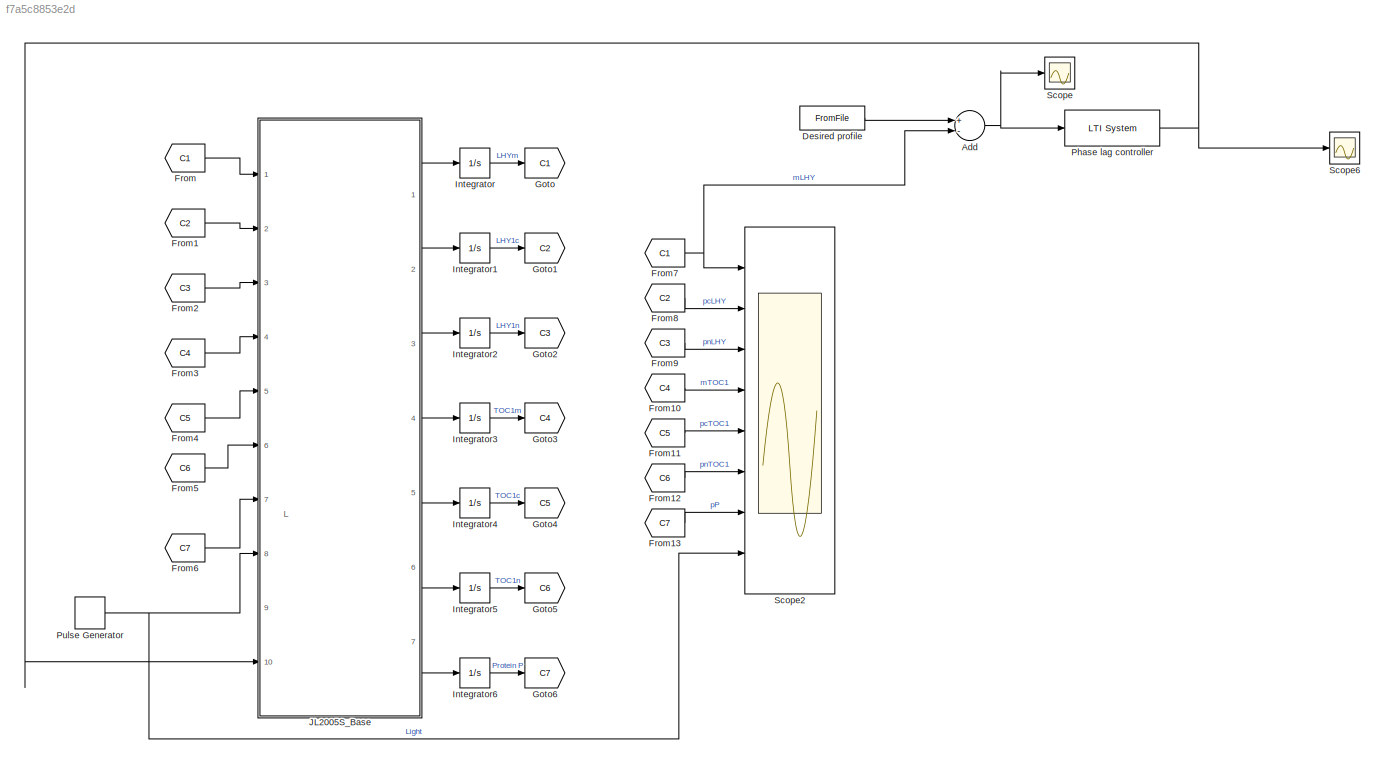
MODEL slx_f7a5c8853e2d
KIND model
CONFIG AbsTol = auto
CONFIG EnableMultiTasking = off
CONFIG FixedStep = 1
CONFIG MaxStep = auto
CONFIG MinStep = auto
CONFIG RelTol = 1e-3
CONFIG SampleTimeConstraint = Unconstrained
CONFIG Solver = ode8
CONFIG SolverName = ode8
CONFIG StartTime = 0.0
CONFIG StopTime = 96
BLOCK [Sum] Add
  InputSameDT = off
  Inputs = +-
  OutDataTypeStr = Inherit: Inherit via internal rule
  Ports = [2, 1]
  SaturateOnIntegerOverflow = off
BLOCK [FromFile] Desired profile
  FileName = JL2005Ssetpoint.mat
  SampleTime = 0
BLOCK [From] From
  GotoTag = C1
BLOCK [From] From1
  GotoTag = C2
BLOCK [From] From10
  GotoTag = C4
BLOCK [From] From11
  GotoTag = C5
BLOCK [From] From12
  GotoTag = C6
BLOCK [From] From13
  GotoTag = C7
BLOCK [From] From2
  GotoTag = C3
BLOCK [From] From3
  GotoTag = C4
BLOCK [From] From4
  GotoTag = C5
BLOCK [From] From5
  GotoTag = C6
BLOCK [From] From6
  GotoTag = C7
BLOCK [From] From7
  GotoTag = C1
BLOCK [From] From8
  GotoTag = C2
BLOCK [From] From9
  GotoTag = C3
BLOCK [Goto] Goto
  GotoTag = C1
BLOCK [Goto] Goto1
  GotoTag = C2
BLOCK [Goto] Goto2
  GotoTag = C3
BLOCK [Goto] Goto3
  GotoTag = C4
BLOCK [Goto] Goto4
  GotoTag = C5
BLOCK [Goto] Goto5
  GotoTag = C6
BLOCK [Goto] Goto6
  GotoTag = C7
BLOCK [Integrator] Integrator
  InitialCondition = 2.4051
  Ports = [1, 1]
BLOCK [Integrator] Integrator1
  InitialCondition = 1.3471
  Ports = [1, 1]
BLOCK [Integrator] Integrator2
  InitialCondition = 0.7448
  Ports = [1, 1]
BLOCK [Integrator] Integrator3
  InitialCondition = 0.0591
  Ports = [1, 1]
BLOCK [Integrator] Integrator4
  InitialCondition = 0.7377
  Ports = [1, 1]
BLOCK [Integrator] Integrator5
  InitialCondition = 1.3882
  Ports = [1, 1]
BLOCK [Integrator] Integrator6
  InitialCondition = 0.1462
  Ports = [1, 1]
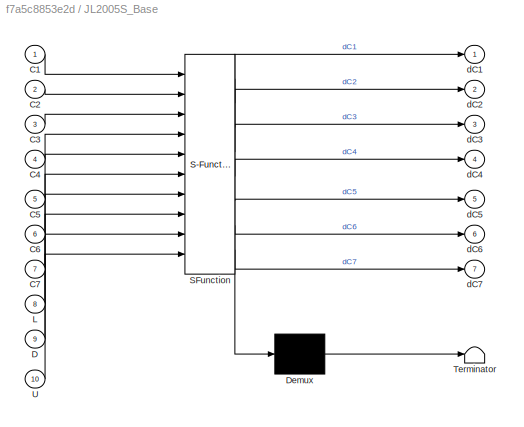
BLOCK [SubSystem] JL2005S_Base
  ErrorFcn = Stateflow.Translate.translate
  PermitHierarchicalResolution = ExplicitOnly
  Ports = [10, 7]
  RequestExecContextInheritance = off
  SFBlockType = MATLAB Function
  TreatAsAtomicUnit = on
  Variant = off
BLOCK [Demux] JL2005S_Base/ Demux 
  Outputs = 1
  Ports = [1, 1]
BLOCK [S-Function] JL2005S_Base/ SFunction 
  EnableBusSupport = on
  FunctionName = sf_sfun
  PortCounts = [10 8]
  Ports = [10, 8]
  SFcnIsStateOwnerBlock = off
  SFunctionDeploymentMode = off
  Tag = Stateflow S-Function S1File_JL2005S 2
BLOCK [Terminator] JL2005S_Base/ Terminator 
BLOCK [Inport] JL2005S_Base/C1
  IconDisplay = Port number
BLOCK [Inport] JL2005S_Base/C2
  IconDisplay = Port number
  Port = 2
BLOCK [Inport] JL2005S_Base/C3
  IconDisplay = Port number
  Port = 3
BLOCK [Inport] JL2005S_Base/C4
  IconDisplay = Port number
  Port = 4
BLOCK [Inport] JL2005S_Base/C5
  IconDisplay = Port number
  Port = 5
BLOCK [Inport] JL2005S_Base/C6
  IconDisplay = Port number
  Port = 6
BLOCK [Inport] JL2005S_Base/C7
  IconDisplay = Port number
  Port = 7
BLOCK [Inport] JL2005S_Base/D
  IconDisplay = Port number
  Port = 9
BLOCK [Inport] JL2005S_Base/L
  IconDisplay = Port number
  Port = 8
BLOCK [Inport] JL2005S_Base/U
  IconDisplay = Port number
  Port = 10
BLOCK [Outport] JL2005S_Base/dC1
  IconDisplay = Port number
BLOCK [Outport] JL2005S_Base/dC2
  IconDisplay = Port number
  Port = 2
BLOCK [Outport] JL2005S_Base/dC3
  IconDisplay = Port number
  Port = 3
BLOCK [Outport] JL2005S_Base/dC4
  IconDisplay = Port number
  Port = 4
BLOCK [Outport] JL2005S_Base/dC5
  IconDisplay = Port number
  Port = 5
BLOCK [Outport] JL2005S_Base/dC6
  IconDisplay = Port number
  Port = 6
BLOCK [Outport] JL2005S_Base/dC7
  IconDisplay = Port number
  Port = 7
BLOCK [Reference] Phase lag controller  REF=cstblocks/LTI System
  Ports = [1, 1]
  SourceBlock = cstblocks/LTI System
  SourceProductBaseCode = CT
  SourceProductName = Control System Toolbox
  SourceType = LTI Block
BLOCK [DiscretePulseGenerator] Pulse Generator
  Period = 24
  Ports = [0, 1]
  PulseType = Time based
  PulseWidth = 50
BLOCK [Scope] Scope
  NumInputPorts = 1
  Ports = [1]
  ScopeSpecificationString = Simulink.scopes.TimeScopeBlockCfg('CurrentConfiguration', extmgr.ConfigurationSet(extmgr.Configuration('Core','General UI',true),extmgr.Configuration('Core','Source UI',true),extmgr.Configuration('Sources','WiredSimulink',true,'DataLoggingVariableName','ScopeData1'),extmgr.Configuration('Visuals','Time Domain',true,'SerializedDisplays',{struct('MinYLimReal','-0.10112','MaxYLimReal','0.56075','YLab...<+1362ch>
BLOCK [Scope] Scope2
  NumInputPorts = 8
  Ports = [8]
  ScopeSpecificationString = Simulink.scopes.TimeScopeBlockCfg('CurrentConfiguration', extmgr.ConfigurationSet(extmgr.Configuration('Core','General UI',true),extmgr.Configuration('Core','Source UI',true),extmgr.Configuration('Sources','WiredSimulink',true),extmgr.Configuration('Visuals','Time Domain',true,'SerializedDisplays',{struct('MinYLimReal','0.79055','MaxYLimReal','2.58449','YLabelReal','','MinYLimMag','0.79055','MaxYL...<+6168ch>
BLOCK [Scope] Scope6
  NumInputPorts = 1
  Ports = [1]
  ScopeSpecificationString = Simulink.scopes.TimeScopeBlockCfg('CurrentConfiguration', extmgr.ConfigurationSet(extmgr.Configuration('Core','General UI',true),extmgr.Configuration('Core','Source UI',true),extmgr.Configuration('Sources','WiredSimulink',true,'DataLoggingVariableName','ScopeData1'),extmgr.Configuration('Visuals','Time Domain',true,'SerializedDisplays',{struct('MinYLimReal','-0.1928','MaxYLimReal','1.73523','YLabe...<+1392ch>
ANNOTATION (root): L
NET Add:1 -> Phase lag controller:1, Scope:1
LINE Desired profile:1 -> Add:1
LINE From10:1 -> Scope2:4
LINE From11:1 -> Scope2:5
LINE From12:1 -> Scope2:6
LINE From13:1 -> Scope2:7
LINE From1:1 -> JL2005S_Base:2
LINE From2:1 -> JL2005S_Base:3
LINE From3:1 -> JL2005S_Base:4
LINE From4:1 -> JL2005S_Base:5
LINE From5:1 -> JL2005S_Base:6
LINE From6:1 -> JL2005S_Base:7
NET From7:1 -> Add:2, Scope2:1
LINE From8:1 -> Scope2:2
LINE From9:1 -> Scope2:3
LINE From:1 -> JL2005S_Base:1
LINE Integrator1:1 -> Goto1:1
LINE Integrator2:1 -> Goto2:1
LINE Integrator3:1 -> Goto3:1
LINE Integrator4:1 -> Goto4:1
LINE Integrator5:1 -> Goto5:1
LINE Integrator6:1 -> Goto6:1
LINE Integrator:1 -> Goto:1
LINE JL2005S_Base:1 -> Integrator:1
LINE JL2005S_Base:2 -> Integrator1:1
LINE JL2005S_Base:3 -> Integrator2:1
LINE JL2005S_Base:4 -> Integrator3:1
LINE JL2005S_Base:5 -> Integrator4:1
LINE JL2005S_Base:6 -> Integrator5:1
LINE JL2005S_Base:7 -> Integrator6:1
NET Phase lag controller:1 -> JL2005S_Base:10, Scope6:1
NET Pulse Generator:1 -> JL2005S_Base:8, Scope2:8
note: NET lines group one-source signal fan-out (src -> all destinations, sorted); 1:1 wires keep LINE
CHART JL2005S_Base states=1 transitions=1
  STATE_LABEL 'eML_blk_kernel()'
  STATE_LABEL 'SCRIPT:\nfunction [dC1,dC2,dC3,dC4,dC5,dC6,dC7] = fcn(C1,C2,C3,C4,C5,C6,C7,L,D,U)\n\n% % Base level (MSE = 0.0117)\nprmLHY = [4.6322,1.4203,1.3448,1.2854];\nprpcLHY = [0.4079,2.0739,1.7424];\nprpnLHY = [0.93366,1.7405,1.4008];\nprmTOC1 = [0.050646,-1.4632,1.4907];\nprpcTOC1 = [2.4345,1.9354,0.20909];\nprpnTOC1 = [0.037946,1.146,0.027235];\nprpP = [0.41457,0.49865,1.6192];  \n\n% % Range of ~50 (MSE = 0.0137)\n...<+2332ch>'
